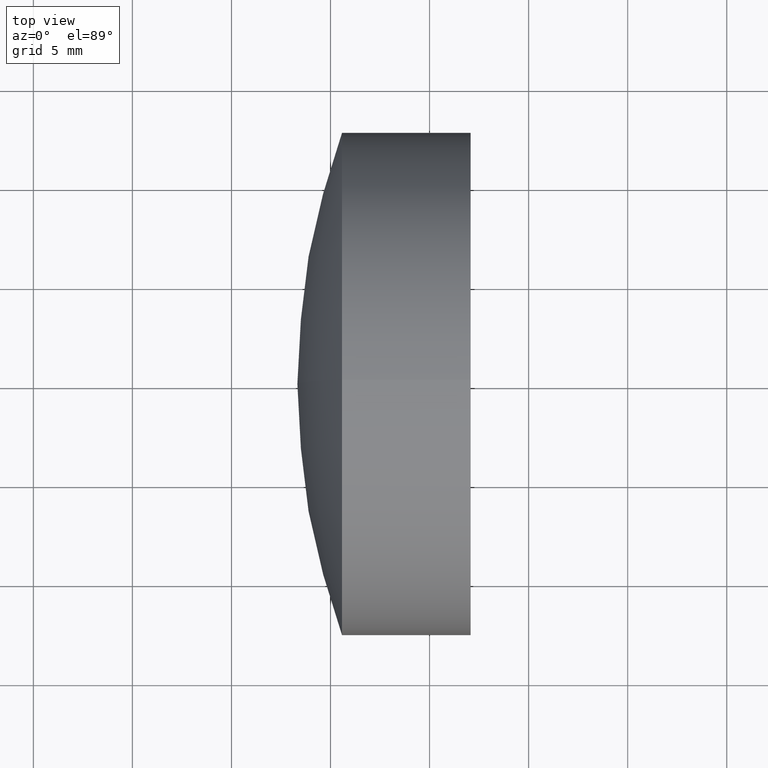
[diagram: clean part render]
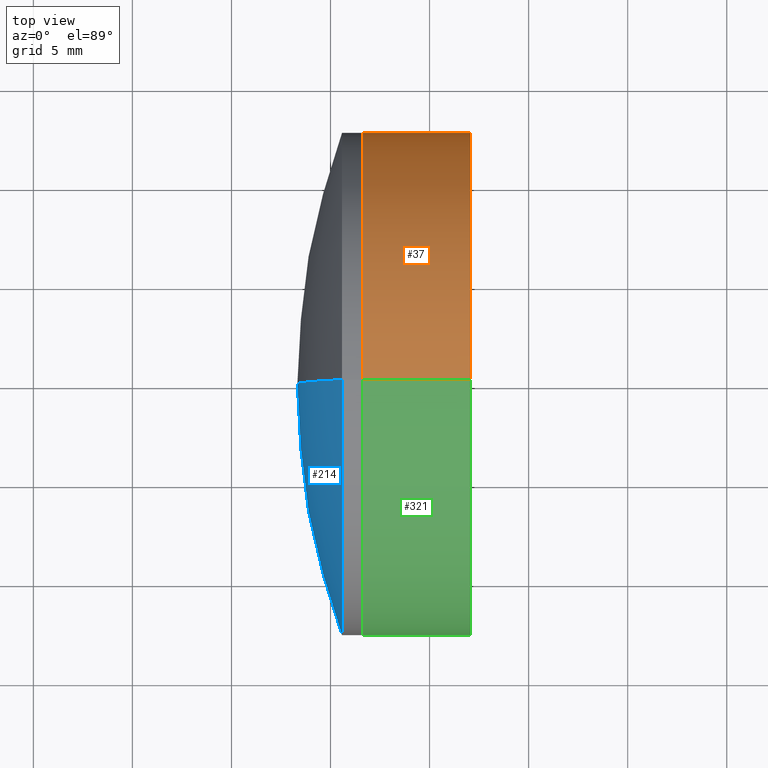
[diagram: same view with three faces highlighted in distinct colors, each labeled with its STEP entity id]
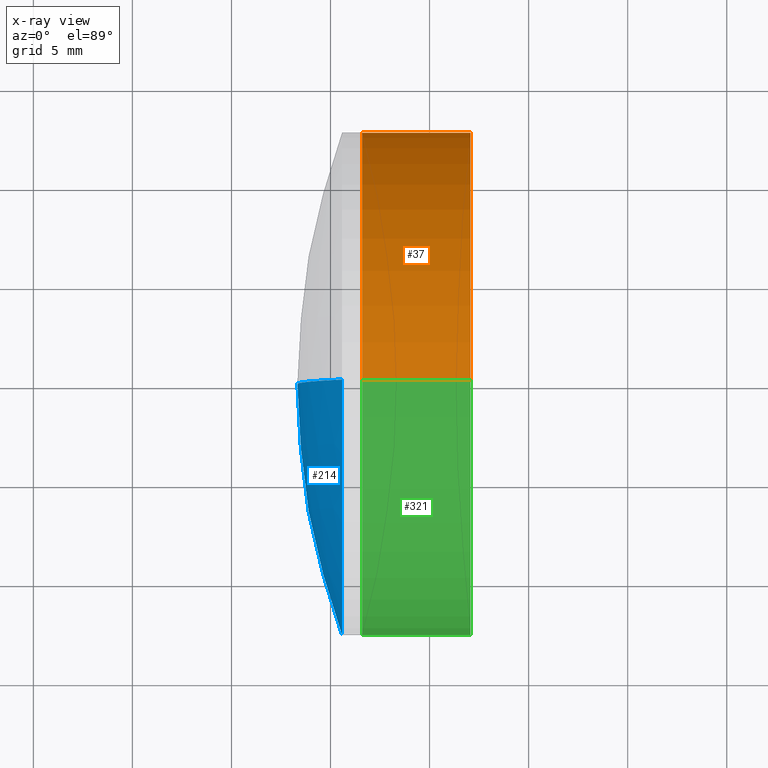
[diagram: x-ray of the same camera — body ghosted, the three highlighted faces saturated]
A machine part, top view with three faces highlighted in distinct colors.
The next image is the same camera in x-ray (body ghosted, the three faces saturated) — at least one of them is partly hidden behind the body in this view.
Their STEP definitions:

[orange] entity #37 — the highlighted cylindrical surface (partial cylindrical patch) has radius 12.7 mm, axis along (-1, -0, -0).
#1 = VERTEX_POINT ( 'NONE', #102 ) ;
#18 = DIRECTION ( 'NONE',  ( 0.0000000000000000000, 0.0000000000000000000, 1.000000000000000000 ) ) ;
#37 = ADVANCED_FACE ( 'NONE', ( #202 ), #53, .T. ) ;
#41 = CARTESIAN_POINT ( 'NONE',  ( 57.07234192546903300, 0.0000000000000000000, -12.70000000000000300 ) ) ;
#43 = DIRECTION ( 'NONE',  ( -1.000000000000000000, -0.0000000000000000000, -0.0000000000000000000 ) ) ;
#53 = CYLINDRICAL_SURFACE ( 'NONE', #335, 12.70000000000002100 ) ;
#56 = VERTEX_POINT ( 'NONE', #41 ) ;
#74 = ORIENTED_EDGE ( 'NONE', *, *, #86, .F. ) ;
#86 = EDGE_CURVE ( 'NONE', #1, #253, #280, .T. ) ;
#91 = CIRCLE ( 'NONE', #199, 12.70000000000002100 ) ;
#100 = EDGE_CURVE ( 'NONE', #56, #265, #254, .T. ) ;
#102 = CARTESIAN_POINT ( 'NONE',  ( 57.07234192546903300, -1.555301434917139000E-015, 12.70000000000000300 ) ) ;
#118 = DIRECTION ( 'NONE',  ( -1.000000000000000000, -0.0000000000000000000, -0.0000000000000000000 ) ) ;
#120 = CARTESIAN_POINT ( 'NONE',  ( -0.5519199926577972300, 1.555301434917141000E-015, -12.70000000000002100 ) ) ;
#145 = CARTESIAN_POINT ( 'NONE',  ( -0.5519199926577972300, 0.0000000000000000000, 0.0000000000000000000 ) ) ;
#157 = ORIENTED_EDGE ( 'NONE', *, *, #311, .F. ) ;
#159 = EDGE_CURVE ( 'NONE', #1, #56, #334, .T. ) ;
#176 = CARTESIAN_POINT ( 'NONE',  ( -0.5519199926577972300, 0.0000000000000000000, 12.70000000000002100 ) ) ;
#179 = CARTESIAN_POINT ( 'NONE',  ( 51.59793110503332500, 0.0000000000000000000, 0.0000000000000000000 ) ) ;
#181 = DIRECTION ( 'NONE',  ( -1.000000000000000000, -0.0000000000000000000, -0.0000000000000000000 ) ) ;
#187 = DIRECTION ( 'NONE',  ( -1.000000000000000000, -0.0000000000000000000, -0.0000000000000000000 ) ) ;
#191 = VECTOR ( 'NONE', #187, 1000.000000000000000 ) ;
#195 = EDGE_LOOP ( 'NONE', ( #291, #312, #157, #74 ) ) ;
#196 = VECTOR ( 'NONE', #43, 1000.000000000000000 ) ;
#199 = AXIS2_PLACEMENT_3D ( 'NONE', #179, #333, #299 ) ;
#202 = FACE_OUTER_BOUND ( 'NONE', #195, .T. ) ;
#253 = VERTEX_POINT ( 'NONE', #336 ) ;
#254 = LINE ( 'NONE', #120, #191 ) ;
#260 = AXIS2_PLACEMENT_3D ( 'NONE', #338, #181, #18 ) ;
#265 = VERTEX_POINT ( 'NONE', #279 ) ;
#279 = CARTESIAN_POINT ( 'NONE',  ( 51.59793110503333200, 1.555301434917139200E-015, -12.70000000000001900 ) ) ;
#280 = LINE ( 'NONE', #176, #196 ) ;
#291 = ORIENTED_EDGE ( 'NONE', *, *, #159, .T. ) ;
#299 = DIRECTION ( 'NONE',  ( 0.0000000000000000000, 0.0000000000000000000, 1.000000000000000000 ) ) ;
#300 = DIRECTION ( 'NONE',  ( 0.0000000000000000000, 0.0000000000000000000, 1.000000000000000000 ) ) ;
#311 = EDGE_CURVE ( 'NONE', #253, #265, #91, .T. ) ;
#312 = ORIENTED_EDGE ( 'NONE', *, *, #100, .T. ) ;
#333 = DIRECTION ( 'NONE',  ( -1.000000000000000000, -0.0000000000000000000, -0.0000000000000000000 ) ) ;
#334 = CIRCLE ( 'NONE', #260, 12.70000000000002100 ) ;
#335 = AXIS2_PLACEMENT_3D ( 'NONE', #145, #118, #300 ) ;
#336 = CARTESIAN_POINT ( 'NONE',  ( 51.59793110503333200, 0.0000000000000000000, 12.70000000000000600 ) ) ;
#338 = CARTESIAN_POINT ( 'NONE',  ( 57.07234192546902600, 0.0000000000000000000, 0.0000000000000000000 ) ) ;

[blue] entity #214 — the highlighted spherical surface has radius 36.9 mm.
#17 = DIRECTION ( 'NONE',  ( 0.0000000000000000000, 0.0000000000000000000, -1.000000000000000000 ) ) ;
#27 = DIRECTION ( 'NONE',  ( 0.0000000000000000000, 0.0000000000000000000, 1.000000000000000000 ) ) ;
#35 = AXIS2_PLACEMENT_3D ( 'NONE', #78, #107, #158 ) ;
#51 = DIRECTION ( 'NONE',  ( -0.0000000000000000000, -1.000000000000000000, -0.0000000000000000000 ) ) ;
#52 = DIRECTION ( 'NONE',  ( -1.000000000000000000, -0.0000000000000000000, -0.0000000000000000000 ) ) ;
#60 = AXIS2_PLACEMENT_3D ( 'NONE', #228, #52, #204 ) ;
#78 = CARTESIAN_POINT ( 'NONE',  ( 85.22719809801223800, 0.0000000000000000000, 1.005188016315488500E-014 ) ) ;
#82 = ORIENTED_EDGE ( 'NONE', *, *, #116, .F. ) ;
#88 = EDGE_LOOP ( 'NONE', ( #210, #240, #82 ) ) ;
#96 = CARTESIAN_POINT ( 'NONE',  ( 50.58156345236027800, -1.555301434917137600E-015, 12.70000000000000300 ) ) ;
#107 = DIRECTION ( 'NONE',  ( 0.0000000000000000000, -1.000000000000000000, -1.224646799147353200E-016 ) ) ;
#109 = EDGE_CURVE ( 'NONE', #345, #112, #264, .T. ) ;
#112 = VERTEX_POINT ( 'NONE', #258 ) ;
#116 = EDGE_CURVE ( 'NONE', #212, #112, #144, .T. ) ;
#129 = CARTESIAN_POINT ( 'NONE',  ( 50.58156345236027800, 0.0000000000000000000, -12.69999999999999200 ) ) ;
#144 = CIRCLE ( 'NONE', #317, 36.89999999999999900 ) ;
#150 = AXIS2_PLACEMENT_3D ( 'NONE', #203, #51, #17 ) ;
#158 = DIRECTION ( 'NONE',  ( 0.0000000000000000000, 1.224646799147353000E-016, -1.000000000000000000 ) ) ;
#178 = EDGE_CURVE ( 'NONE', #212, #345, #289, .T. ) ;
#203 = CARTESIAN_POINT ( 'NONE',  ( 85.22719809801223800, 0.0000000000000000000, 1.005188016315488500E-014 ) ) ;
#204 = DIRECTION ( 'NONE',  ( 0.0000000000000000000, 0.0000000000000000000, 1.000000000000000000 ) ) ;
#210 = ORIENTED_EDGE ( 'NONE', *, *, #178, .T. ) ;
#212 = VERTEX_POINT ( 'NONE', #129 ) ;
#214 = ADVANCED_FACE ( 'NONE', ( #288 ), #239, .T. ) ;
#228 = CARTESIAN_POINT ( 'NONE',  ( 50.58156345236027800, 0.0000000000000000000, 0.0000000000000000000 ) ) ;
#235 = CARTESIAN_POINT ( 'NONE',  ( 85.22719809801223800, 0.0000000000000000000, 1.005188016315488500E-014 ) ) ;
#239 = SPHERICAL_SURFACE ( 'NONE', #150, 36.89999999999999900 ) ;
#240 = ORIENTED_EDGE ( 'NONE', *, *, #109, .T. ) ;
#258 = CARTESIAN_POINT ( 'NONE',  ( 48.32719809801224600, 0.0000000000000000000, 7.792406818728018300E-015 ) ) ;
#261 = DIRECTION ( 'NONE',  ( 0.0000000000000000000, 1.000000000000000000, -0.0000000000000000000 ) ) ;
#264 = CIRCLE ( 'NONE', #35, 36.89999999999999900 ) ;
#288 = FACE_OUTER_BOUND ( 'NONE', #88, .T. ) ;
#289 = CIRCLE ( 'NONE', #60, 12.69999999999999900 ) ;
#317 = AXIS2_PLACEMENT_3D ( 'NONE', #235, #261, #27 ) ;
#345 = VERTEX_POINT ( 'NONE', #96 ) ;

[green] entity #321 — the highlighted cylindrical surface (partial cylindrical patch) has radius 12.7 mm, axis along (-1, -0, -0).
#1 = VERTEX_POINT ( 'NONE', #102 ) ;
#10 = CYLINDRICAL_SURFACE ( 'NONE', #269, 12.70000000000002100 ) ;
#11 = DIRECTION ( 'NONE',  ( 0.0000000000000000000, 0.0000000000000000000, 1.000000000000000000 ) ) ;
#13 = DIRECTION ( 'NONE',  ( -1.000000000000000000, -0.0000000000000000000, -0.0000000000000000000 ) ) ;
#34 = ORIENTED_EDGE ( 'NONE', *, *, #131, .T. ) ;
#41 = CARTESIAN_POINT ( 'NONE',  ( 57.07234192546903300, 0.0000000000000000000, -12.70000000000000300 ) ) ;
#43 = DIRECTION ( 'NONE',  ( -1.000000000000000000, -0.0000000000000000000, -0.0000000000000000000 ) ) ;
#46 = CARTESIAN_POINT ( 'NONE',  ( 51.59793110503332500, 0.0000000000000000000, 0.0000000000000000000 ) ) ;
#56 = VERTEX_POINT ( 'NONE', #41 ) ;
#58 = ORIENTED_EDGE ( 'NONE', *, *, #332, .F. ) ;
#71 = DIRECTION ( 'NONE',  ( 0.0000000000000000000, 0.0000000000000000000, 1.000000000000000000 ) ) ;
#84 = CIRCLE ( 'NONE', #250, 12.70000000000002100 ) ;
#86 = EDGE_CURVE ( 'NONE', #1, #253, #280, .T. ) ;
#98 = CIRCLE ( 'NONE', #237, 12.70000000000002100 ) ;
#99 = CARTESIAN_POINT ( 'NONE',  ( 57.07234192546902600, 0.0000000000000000000, 0.0000000000000000000 ) ) ;
#100 = EDGE_CURVE ( 'NONE', #56, #265, #254, .T. ) ;
#102 = CARTESIAN_POINT ( 'NONE',  ( 57.07234192546903300, -1.555301434917139000E-015, 12.70000000000000300 ) ) ;
#120 = CARTESIAN_POINT ( 'NONE',  ( -0.5519199926577972300, 1.555301434917141000E-015, -12.70000000000002100 ) ) ;
#127 = DIRECTION ( 'NONE',  ( 0.0000000000000000000, 0.0000000000000000000, 1.000000000000000000 ) ) ;
#131 = EDGE_CURVE ( 'NONE', #56, #1, #98, .T. ) ;
#143 = ORIENTED_EDGE ( 'NONE', *, *, #100, .F. ) ;
#176 = CARTESIAN_POINT ( 'NONE',  ( -0.5519199926577972300, 0.0000000000000000000, 12.70000000000002100 ) ) ;
#187 = DIRECTION ( 'NONE',  ( -1.000000000000000000, -0.0000000000000000000, -0.0000000000000000000 ) ) ;
#191 = VECTOR ( 'NONE', #187, 1000.000000000000000 ) ;
#193 = EDGE_LOOP ( 'NONE', ( #143, #34, #328, #58 ) ) ;
#196 = VECTOR ( 'NONE', #43, 1000.000000000000000 ) ;
#197 = DIRECTION ( 'NONE',  ( -1.000000000000000000, -0.0000000000000000000, -0.0000000000000000000 ) ) ;
#219 = FACE_OUTER_BOUND ( 'NONE', #193, .T. ) ;
#222 = CARTESIAN_POINT ( 'NONE',  ( -0.5519199926577972300, 0.0000000000000000000, 0.0000000000000000000 ) ) ;
#237 = AXIS2_PLACEMENT_3D ( 'NONE', #99, #304, #127 ) ;
#250 = AXIS2_PLACEMENT_3D ( 'NONE', #46, #197, #11 ) ;
#253 = VERTEX_POINT ( 'NONE', #336 ) ;
#254 = LINE ( 'NONE', #120, #191 ) ;
#265 = VERTEX_POINT ( 'NONE', #279 ) ;
#269 = AXIS2_PLACEMENT_3D ( 'NONE', #222, #13, #71 ) ;
#279 = CARTESIAN_POINT ( 'NONE',  ( 51.59793110503333200, 1.555301434917139200E-015, -12.70000000000001900 ) ) ;
#280 = LINE ( 'NONE', #176, #196 ) ;
#304 = DIRECTION ( 'NONE',  ( -1.000000000000000000, -0.0000000000000000000, -0.0000000000000000000 ) ) ;
#321 = ADVANCED_FACE ( 'NONE', ( #219 ), #10, .T. ) ;
#328 = ORIENTED_EDGE ( 'NONE', *, *, #86, .T. ) ;
#332 = EDGE_CURVE ( 'NONE', #265, #253, #84, .T. ) ;
#336 = CARTESIAN_POINT ( 'NONE',  ( 51.59793110503333200, 0.0000000000000000000, 12.70000000000000600 ) ) ;